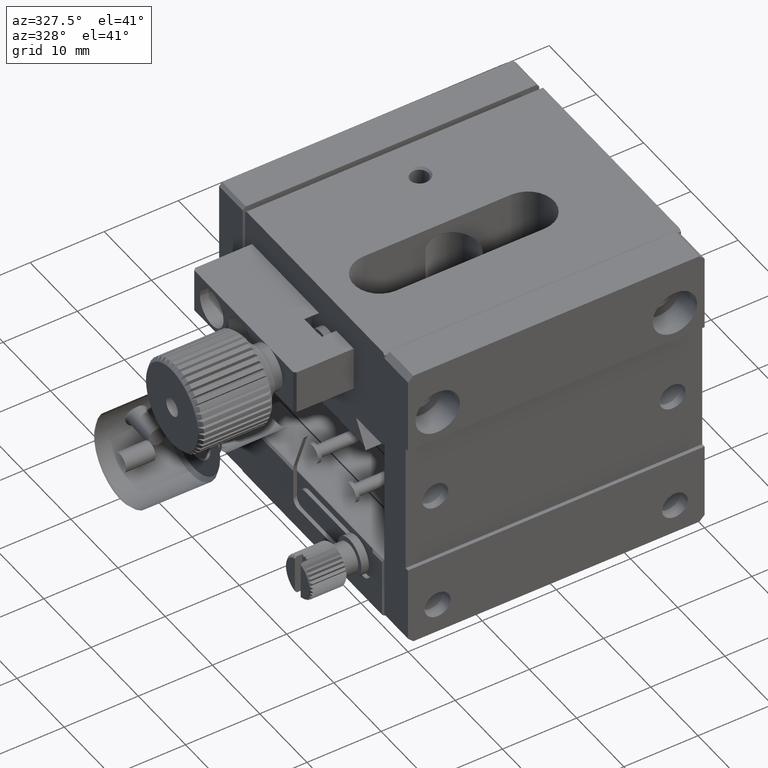
[diagram: clean part render]
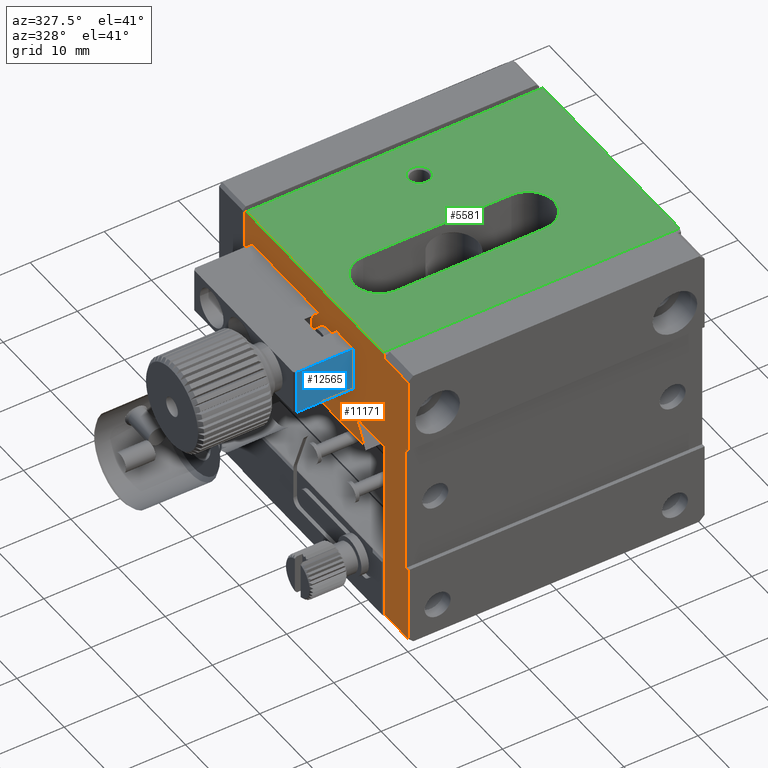
[diagram: same view with three faces highlighted in distinct colors, each labeled with its STEP entity id]
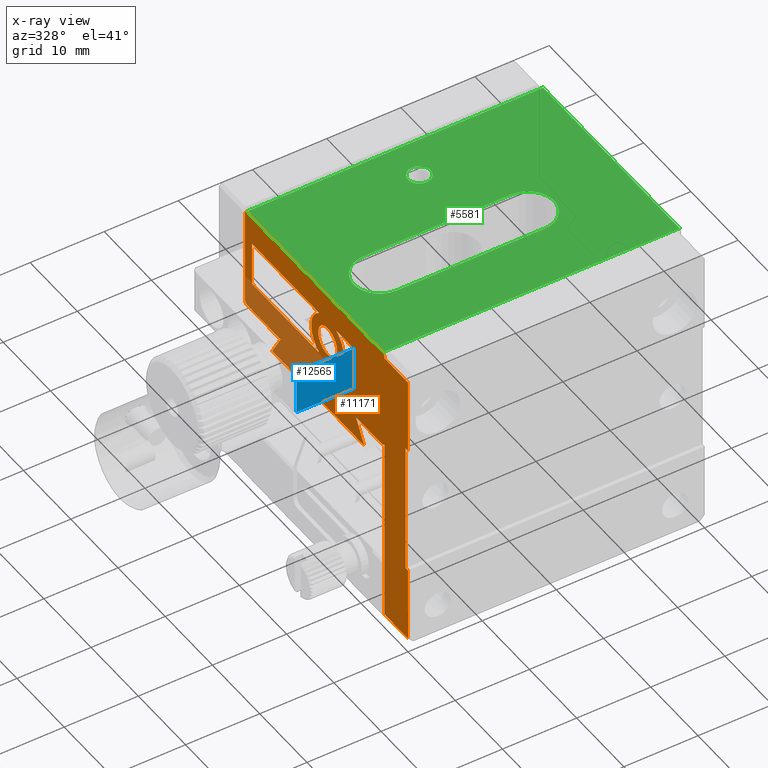
[diagram: x-ray of the same camera — body ghosted, the three highlighted faces saturated]
A machine part, auxiliary view with three faces highlighted in distinct colors.
The next image is the same camera in x-ray (body ghosted, the three faces saturated) — at least one of them is partly hidden behind the body in this view.
Their STEP definitions:

[orange] entity #11171 — the highlighted planar face has unit normal (1, 0, 0).
#56 = VERTEX_POINT ( 'NONE', #6035 ) ;
#57 = VECTOR ( 'NONE', #2877, 1000.000000000000000 ) ;
#62 = ORIENTED_EDGE ( 'NONE', *, *, #12387, .F. ) ;
#65 = DIRECTION ( 'NONE',  ( 1.000000000000000000, 0.000000000000000000, 0.000000000000000000 ) ) ;
#208 = DIRECTION ( 'NONE',  ( 0.000000000000000000, 0.000000000000000000, -1.000000000000000000 ) ) ;
#218 = VECTOR ( 'NONE', #19197, 1000.000000000000000 ) ;
#277 = CARTESIAN_POINT ( 'NONE',  ( 0.000000000000000000, 5.000000000000000000, 0.000000000000000000 ) ) ;
#422 = ORIENTED_EDGE ( 'NONE', *, *, #16693, .F. ) ;
#431 = VERTEX_POINT ( 'NONE', #11874 ) ;
#457 = ORIENTED_EDGE ( 'NONE', *, *, #10751, .T. ) ;
#499 = ORIENTED_EDGE ( 'NONE', *, *, #1529, .T. ) ;
#505 = FACE_BOUND ( 'NONE', #5368, .T. ) ;
#529 = AXIS2_PLACEMENT_3D ( 'NONE', #9708, #11272, #19022 ) ;
#539 = CARTESIAN_POINT ( 'NONE',  ( 0.000000000000000000, 0.000000000000000000, -14.00000000000000000 ) ) ;
#597 = VERTEX_POINT ( 'NONE', #9491 ) ;
#651 = CARTESIAN_POINT ( 'NONE',  ( 0.000000000000000000, 18.82200000000000273, -4.011636568286916393 ) ) ;
#736 = ORIENTED_EDGE ( 'NONE', *, *, #12266, .T. ) ;
#748 = DIRECTION ( 'NONE',  ( -0.000000000000000000, -0.000000000000000000, 1.000000000000000000 ) ) ;
#789 = CARTESIAN_POINT ( 'NONE',  ( 0.000000000000000000, 15.17699999999999960, -10.00000000000000000 ) ) ;
#791 = ORIENTED_EDGE ( 'NONE', *, *, #8363, .F. ) ;
#871 = DIRECTION ( 'NONE',  ( 0.000000000000000000, 0.000000000000000000, -1.000000000000000000 ) ) ;
#885 = DIRECTION ( 'NONE',  ( 0.000000000000000000, -0.4999889997176581447, 0.8660317547072599043 ) ) ;
#943 = VERTEX_POINT ( 'NONE', #17565 ) ;
#1044 = VECTOR ( 'NONE', #12596, 1000.000000000000000 ) ;
#1138 = CARTESIAN_POINT ( 'NONE',  ( -1.490777987167568597E-16, 5.000000000000000000, -39.28999999999999915 ) ) ;
#1241 = EDGE_CURVE ( 'NONE', #597, #3426, #3762, .T. ) ;
#1379 = ORIENTED_EDGE ( 'NONE', *, *, #3926, .T. ) ;
#1393 = VECTOR ( 'NONE', #15242, 1000.000000000000000 ) ;
#1395 = VERTEX_POINT ( 'NONE', #18146 ) ;
#1479 = VERTEX_POINT ( 'NONE', #6278 ) ;
#1529 = EDGE_CURVE ( 'NONE', #1479, #3426, #11862, .T. ) ;
#1562 = LINE ( 'NONE', #7247, #18067 ) ;
#1563 = DIRECTION ( 'NONE',  ( 0.000000000000000000, 0.000000000000000000, -1.000000000000000000 ) ) ;
#1619 = LINE ( 'NONE', #4661, #13008 ) ;
#1750 = CARTESIAN_POINT ( 'NONE',  ( 0.000000000000000000, 0.5000000000000000000, 0.000000000000000000 ) ) ;
#1795 = DIRECTION ( 'NONE',  ( 0.000000000000000000, 0.000000000000000000, -1.000000000000000000 ) ) ;
#1893 = FACE_OUTER_BOUND ( 'NONE', #6034, .T. ) ;
#1899 = EDGE_CURVE ( 'NONE', #11045, #16849, #16319, .T. ) ;
#1975 = LINE ( 'NONE', #6205, #7366 ) ;
#2061 = VECTOR ( 'NONE', #2404, 1000.000000000000114 ) ;
#2178 = FACE_BOUND ( 'NONE', #16252, .T. ) ;
#2382 = LINE ( 'NONE', #18864, #7986 ) ;
#2404 = DIRECTION ( 'NONE',  ( 0.000000000000000000, -0.7071067811864873986, -0.7071067811866076358 ) ) ;
#2416 = VECTOR ( 'NONE', #4064, 1000.000000000000000 ) ;
#2465 = DIRECTION ( 'NONE',  ( 0.000000000000000000, 1.000000000000000000, 0.000000000000000000 ) ) ;
#2494 = CARTESIAN_POINT ( 'NONE',  ( 0.000000000000000000, 0.5000000000000000000, -29.00000000000000000 ) ) ;
#2511 = VECTOR ( 'NONE', #1563, 1000.000000000000000 ) ;
#2535 = ORIENTED_EDGE ( 'NONE', *, *, #14088, .F. ) ;
#2557 = CARTESIAN_POINT ( 'NONE',  ( 0.000000000000000000, 28.73199999999999932, -17.00000000000000000 ) ) ;
#2716 = CARTESIAN_POINT ( 'NONE',  ( 0.000000000000000000, 15.17699999999999960, -10.00000000000000000 ) ) ;
#2740 = ORIENTED_EDGE ( 'NONE', *, *, #1241, .F. ) ;
#2746 = LINE ( 'NONE', #19039, #10428 ) ;
#2832 = CARTESIAN_POINT ( 'NONE',  ( -2.473336205982554525E-16, 0.000000000000000000, -0.7100000000000016298 ) ) ;
#2877 = DIRECTION ( 'NONE',  ( -0.000000000000000000, -1.000000000000000000, -0.000000000000000000 ) ) ;
#2924 = VECTOR ( 'NONE', #6268, 1000.000000000000000 ) ;
#3012 = LINE ( 'NONE', #9011, #12333 ) ;
#3043 = DIRECTION ( 'NONE',  ( -0.000000000000000000, -0.000000000000000000, 1.000000000000000000 ) ) ;
#3087 = VERTEX_POINT ( 'NONE', #14711 ) ;
#3126 = EDGE_CURVE ( 'NONE', #1395, #13192, #2746, .T. ) ;
#3150 = AXIS2_PLACEMENT_3D ( 'NONE', #5198, #3730, #12734 ) ;
#3208 = ORIENTED_EDGE ( 'NONE', *, *, #12553, .T. ) ;
#3232 = ORIENTED_EDGE ( 'NONE', *, *, #15427, .F. ) ;
#3364 = EDGE_CURVE ( 'NONE', #13409, #11045, #9208, .T. ) ;
#3426 = VERTEX_POINT ( 'NONE', #651 ) ;
#3519 = CARTESIAN_POINT ( 'NONE',  ( 0.000000000000000000, 5.000000000000000000, -13.70000000000000107 ) ) ;
#3730 = DIRECTION ( 'NONE',  ( 1.000000000000000000, 0.000000000000000000, 0.000000000000000000 ) ) ;
#3762 = CIRCLE ( 'NONE', #3150, 3.500000000000000444 ) ;
#3814 = ORIENTED_EDGE ( 'NONE', *, *, #16464, .F. ) ;
#3823 = LINE ( 'NONE', #14216, #4326 ) ;
#3909 = VECTOR ( 'NONE', #18662, 1000.000000000000000 ) ;
#3926 = EDGE_CURVE ( 'NONE', #4644, #11369, #2382, .T. ) ;
#4064 = DIRECTION ( 'NONE',  ( 0.000000000000000000, 1.000000000000000000, 0.000000000000000000 ) ) ;
#4216 = CARTESIAN_POINT ( 'NONE',  ( 0.000000000000000000, 0.000000000000000000, 0.000000000000000000 ) ) ;
#4243 = CARTESIAN_POINT ( 'NONE',  ( 0.000000000000000000, 34.20000000000000284, -14.00000000000000000 ) ) ;
#4291 = CARTESIAN_POINT ( 'NONE',  ( -5.204170427930421283E-15, 5.299999999999958966, 2.868762341281245075E-15 ) ) ;
#4319 = VECTOR ( 'NONE', #15636, 1000.000000000000000 ) ;
#4326 = VECTOR ( 'NONE', #7056, 1000.000000000000000 ) ;
#4346 = VECTOR ( 'NONE', #871, 1000.000000000000000 ) ;
#4369 = VERTEX_POINT ( 'NONE', #13127 ) ;
#4534 = DIRECTION ( 'NONE',  ( -0.000000000000000000, -1.000000000000000000, -0.000000000000000000 ) ) ;
#4536 = CARTESIAN_POINT ( 'NONE',  ( 0.000000000000000000, 33.00000000000000000, 0.000000000000000000 ) ) ;
#4583 = CARTESIAN_POINT ( 'NONE',  ( 0.000000000000000000, 33.00000000000000000, -4.000000000000000000 ) ) ;
#4603 = ORIENTED_EDGE ( 'NONE', *, *, #4747, .F. ) ;
#4644 = VERTEX_POINT ( 'NONE', #4291 ) ;
#4661 = CARTESIAN_POINT ( 'NONE',  ( 0.000000000000000000, 0.000000000000000000, -4.000000000000000000 ) ) ;
#4682 = VERTEX_POINT ( 'NONE', #15965 ) ;
#4728 = VERTEX_POINT ( 'NONE', #2716 ) ;
#4747 = EDGE_CURVE ( 'NONE', #15155, #6551, #4877, .T. ) ;
#4793 = AXIS2_PLACEMENT_3D ( 'NONE', #16450, #65, #17927 ) ;
#4877 = LINE ( 'NONE', #5963, #18633 ) ;
#4962 = EDGE_CURVE ( 'NONE', #4644, #13409, #11049, .T. ) ;
#5113 = FACE_BOUND ( 'NONE', #12937, .T. ) ;
#5198 = CARTESIAN_POINT ( 'NONE',  ( 0.000000000000000000, 17.00000000000000000, -7.000000000000000000 ) ) ;
#5282 = EDGE_CURVE ( 'NONE', #1479, #17234, #1619, .T. ) ;
#5289 = ORIENTED_EDGE ( 'NONE', *, *, #5282, .F. ) ;
#5368 = EDGE_LOOP ( 'NONE', ( #3232 ) ) ;
#5410 = CARTESIAN_POINT ( 'NONE',  ( 0.000000000000000000, 0.5000000000000000000, -11.00000000000000000 ) ) ;
#5599 = ORIENTED_EDGE ( 'NONE', *, *, #11482, .F. ) ;
#5938 = VERTEX_POINT ( 'NONE', #16159 ) ;
#5955 = CARTESIAN_POINT ( 'NONE',  ( 0.000000000000000000, 0.000000000000000000, -10.00000000000000000 ) ) ;
#5963 = CARTESIAN_POINT ( 'NONE',  ( 0.000000000000000000, 11.50000000000000000, 0.000000000000000000 ) ) ;
#6034 = EDGE_LOOP ( 'NONE', ( #19347, #17519, #17115, #14388, #1379, #17568, #2535, #18257, #10693, #62, #9961, #791, #11963, #457, #5599, #14169, #3814, #16283, #6058, #6648 ) ) ;
#6035 = CARTESIAN_POINT ( 'NONE',  ( -3.469446951953614189E-15, 27.00000000000001066, -13.99999999999999289 ) ) ;
#6058 = ORIENTED_EDGE ( 'NONE', *, *, #19213, .F. ) ;
#6076 = VECTOR ( 'NONE', #748, 1000.000000000000000 ) ;
#6078 = CARTESIAN_POINT ( 'NONE',  ( 0.000000000000000000, 34.20000000000000995, 5.063928876919421285E-15 ) ) ;
#6205 = CARTESIAN_POINT ( 'NONE',  ( 0.000000000000000000, 34.50000000000000000, -0.3000000000000099809 ) ) ;
#6268 = DIRECTION ( 'NONE',  ( 0.000000000000000000, 0.000000000000000000, -1.000000000000000000 ) ) ;
#6278 = CARTESIAN_POINT ( 'NONE',  ( 0.000000000000000000, 18.82199999999999918, -4.000000000000000000 ) ) ;
#6492 = LINE ( 'NONE', #13639, #11116 ) ;
#6551 = VERTEX_POINT ( 'NONE', #15364 ) ;
#6630 = LINE ( 'NONE', #539, #1044 ) ;
#6648 = ORIENTED_EDGE ( 'NONE', *, *, #12399, .F. ) ;
#6663 = VERTEX_POINT ( 'NONE', #8114 ) ;
#6880 = DIRECTION ( 'NONE',  ( -0.000000000000000000, -1.000000000000000000, -0.000000000000000000 ) ) ;
#7004 = LINE ( 'NONE', #16218, #2416 ) ;
#7056 = DIRECTION ( 'NONE',  ( 0.000000000000000000, 1.000000000000000000, 0.000000000000000000 ) ) ;
#7247 = CARTESIAN_POINT ( 'NONE',  ( 0.000000000000000000, 0.000000000000000000, -14.00000000000000000 ) ) ;
#7282 = VECTOR ( 'NONE', #16301, 999.9999999999998863 ) ;
#7366 = VECTOR ( 'NONE', #16886, 1000.000000000000114 ) ;
#7454 = DIRECTION ( 'NONE',  ( 0.000000000000000000, 1.000000000000000000, 0.000000000000000000 ) ) ;
#7603 = DIRECTION ( 'NONE',  ( 0.000000000000000000, 1.000000000000000000, 0.000000000000000000 ) ) ;
#7644 = EDGE_CURVE ( 'NONE', #4728, #15155, #13403, .T. ) ;
#7759 = CARTESIAN_POINT ( 'NONE',  ( 0.000000000000000000, 34.50000000000000000, 0.000000000000000000 ) ) ;
#7986 = VECTOR ( 'NONE', #12593, 1000.000000000000000 ) ;
#8027 = VERTEX_POINT ( 'NONE', #11519 ) ;
#8038 = LINE ( 'NONE', #13811, #6076 ) ;
#8052 = ORIENTED_EDGE ( 'NONE', *, *, #11121, .F. ) ;
#8081 = DIRECTION ( 'NONE',  ( 1.000000000000000000, 0.000000000000000000, 0.000000000000000000 ) ) ;
#8098 = CARTESIAN_POINT ( 'NONE',  ( -5.204170427930421283E-15, 5.000000000000004441, -0.3000000000000050404 ) ) ;
#8114 = CARTESIAN_POINT ( 'NONE',  ( 0.000000000000000000, 15.17699999999999960, -4.000000000000000000 ) ) ;
#8363 = EDGE_CURVE ( 'NONE', #15221, #8027, #9645, .T. ) ;
#8459 = LINE ( 'NONE', #789, #3909 ) ;
#8499 = VERTEX_POINT ( 'NONE', #10217 ) ;
#8991 = EDGE_CURVE ( 'NONE', #16849, #9131, #14703, .T. ) ;
#9011 = CARTESIAN_POINT ( 'NONE',  ( 0.000000000000000000, 5.000000000000000000, -13.70000000000000107 ) ) ;
#9131 = VERTEX_POINT ( 'NONE', #10488 ) ;
#9208 = LINE ( 'NONE', #277, #2924 ) ;
#9212 = AXIS2_PLACEMENT_3D ( 'NONE', #17077, #8081, #1795 ) ;
#9491 = CARTESIAN_POINT ( 'NONE',  ( 0.000000000000000000, 18.82199999999999918, -9.988363431713086271 ) ) ;
#9645 = LINE ( 'NONE', #12583, #4319 ) ;
#9708 = CARTESIAN_POINT ( 'NONE',  ( 0.000000000000000000, 17.00000000000000000, -7.000000000000000000 ) ) ;
#9820 = VECTOR ( 'NONE', #16600, 1000.000000000000000 ) ;
#9938 = EDGE_CURVE ( 'NONE', #16748, #5938, #10321, .T. ) ;
#9961 = ORIENTED_EDGE ( 'NONE', *, *, #15833, .F. ) ;
#10141 = VERTEX_POINT ( 'NONE', #1138 ) ;
#10217 = CARTESIAN_POINT ( 'NONE',  ( 0.000000000000000000, 15.17700000000000315, -4.012246496111165683 ) ) ;
#10321 = LINE ( 'NONE', #4243, #7282 ) ;
#10428 = VECTOR ( 'NONE', #6880, 1000.000000000000000 ) ;
#10488 = CARTESIAN_POINT ( 'NONE',  ( 0.000000000000000000, 0.000000000000000000, -11.00000000000000000 ) ) ;
#10649 = EDGE_CURVE ( 'NONE', #8499, #431, #11989, .T. ) ;
#10693 = ORIENTED_EDGE ( 'NONE', *, *, #15647, .F. ) ;
#10751 = EDGE_CURVE ( 'NONE', #4682, #15799, #3012, .T. ) ;
#10842 = VERTEX_POINT ( 'NONE', #12675 ) ;
#11045 = VERTEX_POINT ( 'NONE', #14827 ) ;
#11049 = LINE ( 'NONE', #18695, #2061 ) ;
#11096 = PLANE ( 'NONE',  #9212 ) ;
#11116 = VECTOR ( 'NONE', #208, 1000.000000000000000 ) ;
#11121 = EDGE_CURVE ( 'NONE', #17234, #1395, #17978, .T. ) ;
#11171 = ADVANCED_FACE ( 'NONE', ( #1893, #5113, #2178, #505 ), #11096, .F. ) ;
#11216 = CIRCLE ( 'NONE', #529, 2.000000000000000000 ) ;
#11272 = DIRECTION ( 'NONE',  ( -1.000000000000000000, 0.000000000000000000, 0.000000000000000000 ) ) ;
#11332 = ORIENTED_EDGE ( 'NONE', *, *, #3126, .F. ) ;
#11369 = VERTEX_POINT ( 'NONE', #6078 ) ;
#11482 = EDGE_CURVE ( 'NONE', #10141, #15799, #8038, .T. ) ;
#11494 = EDGE_CURVE ( 'NONE', #10842, #10141, #12347, .T. ) ;
#11519 = CARTESIAN_POINT ( 'NONE',  ( 0.000000000000000000, 9.267999999999970484, -17.00000000000000000 ) ) ;
#11793 = LINE ( 'NONE', #14726, #14592 ) ;
#11823 = EDGE_CURVE ( 'NONE', #4682, #15221, #6630, .T. ) ;
#11862 = LINE ( 'NONE', #17845, #2511 ) ;
#11874 = CARTESIAN_POINT ( 'NONE',  ( 0.000000000000000000, 15.17700000000000315, -9.987753503888836093 ) ) ;
#11963 = ORIENTED_EDGE ( 'NONE', *, *, #11823, .F. ) ;
#11989 = CIRCLE ( 'NONE', #4793, 3.500000000000000444 ) ;
#12067 = ORIENTED_EDGE ( 'NONE', *, *, #10649, .F. ) ;
#12097 = EDGE_CURVE ( 'NONE', #8499, #6663, #18482, .T. ) ;
#12148 = VECTOR ( 'NONE', #16494, 1000.000000000000000 ) ;
#12203 = CARTESIAN_POINT ( 'NONE',  ( 0.000000000000000000, 15.17699999999999960, -10.00000000000000000 ) ) ;
#12266 = EDGE_CURVE ( 'NONE', #4728, #431, #8459, .T. ) ;
#12333 = VECTOR ( 'NONE', #13600, 1000.000000000000000 ) ;
#12347 = LINE ( 'NONE', #18341, #18600 ) ;
#12387 = EDGE_CURVE ( 'NONE', #943, #56, #14333, .T. ) ;
#12399 = EDGE_CURVE ( 'NONE', #9131, #4369, #18849, .T. ) ;
#12553 = EDGE_CURVE ( 'NONE', #597, #13192, #6492, .T. ) ;
#12583 = CARTESIAN_POINT ( 'NONE',  ( 0.000000000000000000, 11.00000000000000000, -14.00000000000000000 ) ) ;
#12593 = DIRECTION ( 'NONE',  ( 0.000000000000000000, 1.000000000000000000, 6.083000475477650450E-17 ) ) ;
#12596 = DIRECTION ( 'NONE',  ( 0.000000000000000000, 1.000000000000000000, 0.000000000000000000 ) ) ;
#12632 = EDGE_CURVE ( 'NONE', #19240, #11369, #1975, .T. ) ;
#12675 = CARTESIAN_POINT ( 'NONE',  ( -1.355252715606880543E-16, 0.000000000000000000, -39.28999999999999915 ) ) ;
#12734 = DIRECTION ( 'NONE',  ( 0.000000000000000000, 0.000000000000000000, -1.000000000000000000 ) ) ;
#12937 = EDGE_LOOP ( 'NONE', ( #2740, #3208, #11332, #8052, #5289, #499 ) ) ;
#13008 = VECTOR ( 'NONE', #7603, 1000.000000000000000 ) ;
#13127 = CARTESIAN_POINT ( 'NONE',  ( 0.000000000000000000, 0.5000000000000000000, -11.00000000000000000 ) ) ;
#13192 = VERTEX_POINT ( 'NONE', #14361 ) ;
#13403 = LINE ( 'NONE', #5955, #218 ) ;
#13409 = VERTEX_POINT ( 'NONE', #8098 ) ;
#13455 = CARTESIAN_POINT ( 'NONE',  ( 0.000000000000000000, 0.000000000000000000, 0.000000000000000000 ) ) ;
#13533 = LINE ( 'NONE', #7759, #15561 ) ;
#13600 = DIRECTION ( 'NONE',  ( 0.000000000000000000, -0.7071067811864800712, 0.7071067811866150743 ) ) ;
#13639 = CARTESIAN_POINT ( 'NONE',  ( 0.000000000000000000, 18.82199999999999918, -10.00000000000000000 ) ) ;
#13721 = EDGE_CURVE ( 'NONE', #17619, #3087, #11793, .T. ) ;
#13811 = CARTESIAN_POINT ( 'NONE',  ( 0.000000000000000000, 5.000000000000000000, 0.000000000000000000 ) ) ;
#13999 = DIRECTION ( 'NONE',  ( 0.000000000000000000, 1.000000000000000000, 0.000000000000000000 ) ) ;
#14088 = EDGE_CURVE ( 'NONE', #16748, #19240, #13533, .T. ) ;
#14169 = ORIENTED_EDGE ( 'NONE', *, *, #11494, .F. ) ;
#14216 = CARTESIAN_POINT ( 'NONE',  ( 0.000000000000000000, 0.000000000000000000, -4.000000000000000000 ) ) ;
#14333 = LINE ( 'NONE', #2557, #16458 ) ;
#14361 = CARTESIAN_POINT ( 'NONE',  ( 0.000000000000000000, 18.82199999999999918, -10.00000000000000000 ) ) ;
#14388 = ORIENTED_EDGE ( 'NONE', *, *, #4962, .F. ) ;
#14592 = VECTOR ( 'NONE', #4534, 1000.000000000000000 ) ;
#14639 = VERTEX_POINT ( 'NONE', #19068 ) ;
#14703 = LINE ( 'NONE', #4216, #4346 ) ;
#14711 = CARTESIAN_POINT ( 'NONE',  ( 0.000000000000000000, 0.000000000000000000, -29.00000000000000000 ) ) ;
#14726 = CARTESIAN_POINT ( 'NONE',  ( 0.000000000000000000, 0.5000000000000000000, -29.00000000000000000 ) ) ;
#14827 = CARTESIAN_POINT ( 'NONE',  ( -1.304430738771621290E-16, 5.000000000000000000, -0.7100000000000018519 ) ) ;
#15030 = LINE ( 'NONE', #13455, #12148 ) ;
#15155 = VERTEX_POINT ( 'NONE', #15906 ) ;
#15221 = VERTEX_POINT ( 'NONE', #16287 ) ;
#15242 = DIRECTION ( 'NONE',  ( -0.000000000000000000, -0.000000000000000000, 1.000000000000000000 ) ) ;
#15364 = CARTESIAN_POINT ( 'NONE',  ( 0.000000000000000000, 11.50000000000000000, -4.000000000000000000 ) ) ;
#15427 = EDGE_CURVE ( 'NONE', #14639, #14639, #11216, .T. ) ;
#15561 = VECTOR ( 'NONE', #3043, 1000.000000000000000 ) ;
#15574 = DIRECTION ( 'NONE',  ( 0.000000000000000000, 0.000000000000000000, -1.000000000000000000 ) ) ;
#15612 = ORIENTED_EDGE ( 'NONE', *, *, #12097, .T. ) ;
#15636 = DIRECTION ( 'NONE',  ( 0.000000000000000000, -0.4999889997176641954, -0.8660317547072564626 ) ) ;
#15647 = EDGE_CURVE ( 'NONE', #56, #5938, #1562, .T. ) ;
#15690 = VECTOR ( 'NONE', #15574, 1000.000000000000000 ) ;
#15799 = VERTEX_POINT ( 'NONE', #3519 ) ;
#15833 = EDGE_CURVE ( 'NONE', #8027, #943, #7004, .T. ) ;
#15906 = CARTESIAN_POINT ( 'NONE',  ( 0.000000000000000000, 11.50000000000000000, -10.00000000000000000 ) ) ;
#15965 = CARTESIAN_POINT ( 'NONE',  ( 0.000000000000000000, 5.299999999999955413, -14.00000000000000533 ) ) ;
#16159 = CARTESIAN_POINT ( 'NONE',  ( 0.000000000000000000, 34.19999999999999574, -14.00000000000000178 ) ) ;
#16218 = CARTESIAN_POINT ( 'NONE',  ( 0.000000000000000000, 0.000000000000000000, -17.00000000000000000 ) ) ;
#16252 = EDGE_LOOP ( 'NONE', ( #12067, #15612, #422, #4603, #16962, #736 ) ) ;
#16283 = ORIENTED_EDGE ( 'NONE', *, *, #13721, .F. ) ;
#16287 = CARTESIAN_POINT ( 'NONE',  ( 0.000000000000000000, 11.00000000000000000, -14.00000000000000000 ) ) ;
#16301 = DIRECTION ( 'NONE',  ( 0.000000000000000000, -0.7071067811865191510, -0.7071067811865761055 ) ) ;
#16319 = LINE ( 'NONE', #17996, #57 ) ;
#16450 = CARTESIAN_POINT ( 'NONE',  ( 0.000000000000000000, 17.00000000000000000, -7.000000000000000000 ) ) ;
#16458 = VECTOR ( 'NONE', #885, 1000.000000000000000 ) ;
#16464 = EDGE_CURVE ( 'NONE', #3087, #10842, #15030, .T. ) ;
#16494 = DIRECTION ( 'NONE',  ( 0.000000000000000000, 0.000000000000000000, -1.000000000000000000 ) ) ;
#16600 = DIRECTION ( 'NONE',  ( 0.000000000000000000, 0.000000000000000000, -1.000000000000000000 ) ) ;
#16646 = DIRECTION ( 'NONE',  ( -0.000000000000000000, -0.000000000000000000, 1.000000000000000000 ) ) ;
#16656 = LINE ( 'NONE', #1750, #15690 ) ;
#16693 = EDGE_CURVE ( 'NONE', #6551, #6663, #3823, .T. ) ;
#16748 = VERTEX_POINT ( 'NONE', #17545 ) ;
#16771 = VECTOR ( 'NONE', #2465, 1000.000000000000000 ) ;
#16849 = VERTEX_POINT ( 'NONE', #2832 ) ;
#16886 = DIRECTION ( 'NONE',  ( 0.000000000000000000, -0.7071067811865355823, 0.7071067811865594521 ) ) ;
#16962 = ORIENTED_EDGE ( 'NONE', *, *, #7644, .F. ) ;
#17042 = CARTESIAN_POINT ( 'NONE',  ( 0.000000000000000000, 34.50000000000000000, -0.3000000000000102029 ) ) ;
#17077 = CARTESIAN_POINT ( 'NONE',  ( 0.000000000000000000, 0.000000000000000000, 0.000000000000000000 ) ) ;
#17115 = ORIENTED_EDGE ( 'NONE', *, *, #3364, .F. ) ;
#17234 = VERTEX_POINT ( 'NONE', #4583 ) ;
#17519 = ORIENTED_EDGE ( 'NONE', *, *, #1899, .F. ) ;
#17545 = CARTESIAN_POINT ( 'NONE',  ( 0.000000000000000000, 34.49999999999999289, -13.69999999999999396 ) ) ;
#17565 = CARTESIAN_POINT ( 'NONE',  ( -1.734723475976807094E-15, 28.73199999999999932, -17.00000000000000000 ) ) ;
#17568 = ORIENTED_EDGE ( 'NONE', *, *, #12632, .F. ) ;
#17619 = VERTEX_POINT ( 'NONE', #2494 ) ;
#17845 = CARTESIAN_POINT ( 'NONE',  ( 0.000000000000000000, 18.82199999999999918, -10.00000000000000000 ) ) ;
#17927 = DIRECTION ( 'NONE',  ( 0.000000000000000000, 0.000000000000000000, -1.000000000000000000 ) ) ;
#17978 = LINE ( 'NONE', #4536, #9820 ) ;
#17996 = CARTESIAN_POINT ( 'NONE',  ( 0.000000000000000000, 0.000000000000000000, -0.7100000000000019629 ) ) ;
#18067 = VECTOR ( 'NONE', #7454, 1000.000000000000000 ) ;
#18146 = CARTESIAN_POINT ( 'NONE',  ( 0.000000000000000000, 33.00000000000000000, -10.00000000000000000 ) ) ;
#18257 = ORIENTED_EDGE ( 'NONE', *, *, #9938, .T. ) ;
#18341 = CARTESIAN_POINT ( 'NONE',  ( 0.000000000000000000, 0.000000000000000000, -39.28999999999999915 ) ) ;
#18482 = LINE ( 'NONE', #12203, #1393 ) ;
#18600 = VECTOR ( 'NONE', #13999, 1000.000000000000000 ) ;
#18633 = VECTOR ( 'NONE', #16646, 1000.000000000000000 ) ;
#18662 = DIRECTION ( 'NONE',  ( -0.000000000000000000, -0.000000000000000000, 1.000000000000000000 ) ) ;
#18695 = CARTESIAN_POINT ( 'NONE',  ( 0.000000000000000000, 5.299999999999959854, 1.836970198720740089E-17 ) ) ;
#18849 = LINE ( 'NONE', #5410, #16771 ) ;
#18864 = CARTESIAN_POINT ( 'NONE',  ( 0.000000000000000000, 34.20000000000000284, 1.776356839400250070E-15 ) ) ;
#19022 = DIRECTION ( 'NONE',  ( 0.000000000000000000, 0.000000000000000000, 1.000000000000000000 ) ) ;
#19039 = CARTESIAN_POINT ( 'NONE',  ( 0.000000000000000000, 0.000000000000000000, -10.00000000000000000 ) ) ;
#19068 = CARTESIAN_POINT ( 'NONE',  ( 0.000000000000000000, 17.00000000000000000, -5.000000000000000000 ) ) ;
#19197 = DIRECTION ( 'NONE',  ( -0.000000000000000000, -1.000000000000000000, -0.000000000000000000 ) ) ;
#19213 = EDGE_CURVE ( 'NONE', #4369, #17619, #16656, .T. ) ;
#19240 = VERTEX_POINT ( 'NONE', #17042 ) ;
#19347 = ORIENTED_EDGE ( 'NONE', *, *, #8991, .F. ) ;

[blue] entity #12565 — the highlighted planar face has unit normal (-0, 1, 0).
#655 = DIRECTION ( 'NONE',  ( -0.000000000000000000, -0.000000000000000000, 1.000000000000000000 ) ) ;
#1032 = EDGE_LOOP ( 'NONE', ( #1035, #14800, #2325, #4582 ) ) ;
#1035 = ORIENTED_EDGE ( 'NONE', *, *, #19344, .F. ) ;
#1488 = VERTEX_POINT ( 'NONE', #14902 ) ;
#2325 = ORIENTED_EDGE ( 'NONE', *, *, #4747, .T. ) ;
#2508 = CARTESIAN_POINT ( 'NONE',  ( -7.699999999999990408, 11.50000000000000000, -10.00000000000000000 ) ) ;
#3253 = FACE_OUTER_BOUND ( 'NONE', #1032, .T. ) ;
#4582 = ORIENTED_EDGE ( 'NONE', *, *, #10552, .T. ) ;
#4747 = EDGE_CURVE ( 'NONE', #15155, #6551, #4877, .T. ) ;
#4877 = LINE ( 'NONE', #5963, #18633 ) ;
#5045 = VECTOR ( 'NONE', #655, 1000.000000000000000 ) ;
#5934 = VERTEX_POINT ( 'NONE', #17836 ) ;
#5963 = CARTESIAN_POINT ( 'NONE',  ( 0.000000000000000000, 11.50000000000000000, 0.000000000000000000 ) ) ;
#6132 = EDGE_CURVE ( 'NONE', #15155, #5934, #13991, .T. ) ;
#6300 = PLANE ( 'NONE',  #14244 ) ;
#6551 = VERTEX_POINT ( 'NONE', #15364 ) ;
#6782 = VECTOR ( 'NONE', #9585, 1000.000000000000000 ) ;
#8235 = DIRECTION ( 'NONE',  ( -1.000000000000000000, 0.000000000000000000, 0.000000000000000000 ) ) ;
#9431 = DIRECTION ( 'NONE',  ( 1.000000000000000000, 0.000000000000000000, 0.000000000000000000 ) ) ;
#9585 = DIRECTION ( 'NONE',  ( -1.000000000000000000, 0.000000000000000000, 0.000000000000000000 ) ) ;
#10552 = EDGE_CURVE ( 'NONE', #6551, #1488, #12633, .T. ) ;
#10707 = DIRECTION ( 'NONE',  ( -0.000000000000000000, 1.000000000000000000, 0.000000000000000000 ) ) ;
#12565 = ADVANCED_FACE ( 'NONE', ( #3253 ), #6300, .F. ) ;
#12633 = LINE ( 'NONE', #15867, #16055 ) ;
#13991 = LINE ( 'NONE', #15661, #6782 ) ;
#14244 = AXIS2_PLACEMENT_3D ( 'NONE', #16686, #10707, #9431 ) ;
#14800 = ORIENTED_EDGE ( 'NONE', *, *, #6132, .F. ) ;
#14902 = CARTESIAN_POINT ( 'NONE',  ( -7.699999999999990408, 11.50000000000000000, -4.000000000000000000 ) ) ;
#15155 = VERTEX_POINT ( 'NONE', #15906 ) ;
#15364 = CARTESIAN_POINT ( 'NONE',  ( 0.000000000000000000, 11.50000000000000000, -4.000000000000000000 ) ) ;
#15661 = CARTESIAN_POINT ( 'NONE',  ( 0.000000000000000000, 11.50000000000000000, -10.00000000000000000 ) ) ;
#15666 = LINE ( 'NONE', #2508, #5045 ) ;
#15867 = CARTESIAN_POINT ( 'NONE',  ( 0.000000000000000000, 11.50000000000000000, -4.000000000000000000 ) ) ;
#15906 = CARTESIAN_POINT ( 'NONE',  ( 0.000000000000000000, 11.50000000000000000, -10.00000000000000000 ) ) ;
#16055 = VECTOR ( 'NONE', #8235, 1000.000000000000000 ) ;
#16646 = DIRECTION ( 'NONE',  ( -0.000000000000000000, -0.000000000000000000, 1.000000000000000000 ) ) ;
#16686 = CARTESIAN_POINT ( 'NONE',  ( 0.000000000000000000, 11.50000000000000000, -10.00000000000000000 ) ) ;
#17836 = CARTESIAN_POINT ( 'NONE',  ( -7.699999999999990408, 11.50000000000000000, -10.00000000000000000 ) ) ;
#18633 = VECTOR ( 'NONE', #16646, 1000.000000000000000 ) ;
#19344 = EDGE_CURVE ( 'NONE', #5934, #1488, #15666, .T. ) ;

[green] entity #5581 — the highlighted planar face has unit normal (0, 0, -1).
#547 = EDGE_CURVE ( 'NONE', #8023, #4615, #13807, .T. ) ;
#701 = CARTESIAN_POINT ( 'NONE',  ( 27.00000000000000000, 20.50000000000000000, 2.357464435649529869E-16 ) ) ;
#1165 = FACE_BOUND ( 'NONE', #17008, .T. ) ;
#1359 = DIRECTION ( 'NONE',  ( -1.000000000000000000, -0.000000000000000000, -0.000000000000000000 ) ) ;
#1473 = FACE_BOUND ( 'NONE', #16503, .T. ) ;
#1883 = CARTESIAN_POINT ( 'NONE',  ( 20.00000000000000000, 29.00000000000000000, -5.684341886080801487E-11 ) ) ;
#2088 = AXIS2_PLACEMENT_3D ( 'NONE', #7168, #5790, #11774 ) ;
#2341 = ORIENTED_EDGE ( 'NONE', *, *, #547, .F. ) ;
#2382 = LINE ( 'NONE', #18864, #7986 ) ;
#2521 = CARTESIAN_POINT ( 'NONE',  ( 6.999999999999999112, 13.49999999999999822, 0.000000000000000000 ) ) ;
#3195 = EDGE_LOOP ( 'NONE', ( #14018, #6183, #5841, #6599 ) ) ;
#3451 = DIRECTION ( 'NONE',  ( 1.000000000000000000, 0.000000000000000000, 0.000000000000000000 ) ) ;
#3666 = ORIENTED_EDGE ( 'NONE', *, *, #12298, .F. ) ;
#3926 = EDGE_CURVE ( 'NONE', #4644, #11369, #2382, .T. ) ;
#4291 = CARTESIAN_POINT ( 'NONE',  ( -5.204170427930421283E-15, 5.299999999999958966, 2.868762341281245075E-15 ) ) ;
#4330 = EDGE_CURVE ( 'NONE', #16147, #8023, #16275, .T. ) ;
#4615 = VERTEX_POINT ( 'NONE', #2521 ) ;
#4644 = VERTEX_POINT ( 'NONE', #4291 ) ;
#5276 = EDGE_CURVE ( 'NONE', #11369, #10981, #5937, .T. ) ;
#5581 = ADVANCED_FACE ( 'NONE', ( #7260, #1473, #1165 ), #5996, .F. ) ;
#5790 = DIRECTION ( 'NONE',  ( 0.000000000000000000, 6.083000475477650450E-17, -1.000000000000000000 ) ) ;
#5841 = ORIENTED_EDGE ( 'NONE', *, *, #5276, .F. ) ;
#5891 = CARTESIAN_POINT ( 'NONE',  ( 40.00000000000000000, 20.50000000000000000, 9.429857742598119475E-16 ) ) ;
#5937 = LINE ( 'NONE', #10641, #11129 ) ;
#5996 = PLANE ( 'NONE',  #2088 ) ;
#6078 = CARTESIAN_POINT ( 'NONE',  ( 0.000000000000000000, 34.20000000000000995, 5.063928876919421285E-15 ) ) ;
#6183 = ORIENTED_EDGE ( 'NONE', *, *, #15072, .F. ) ;
#6247 = EDGE_CURVE ( 'NONE', #10920, #4644, #12702, .T. ) ;
#6358 = DIRECTION ( 'NONE',  ( 1.000000000000000000, 0.000000000000000000, 0.000000000000000000 ) ) ;
#6599 = ORIENTED_EDGE ( 'NONE', *, *, #3926, .F. ) ;
#6857 = EDGE_CURVE ( 'NONE', #8074, #16147, #10251, .T. ) ;
#7168 = CARTESIAN_POINT ( 'NONE',  ( 40.00000000000000000, 34.20000000000000284, 1.776356839400250070E-15 ) ) ;
#7260 = FACE_OUTER_BOUND ( 'NONE', #3195, .T. ) ;
#7523 = EDGE_CURVE ( 'NONE', #16631, #16631, #18999, .T. ) ;
#7986 = VECTOR ( 'NONE', #12593, 1000.000000000000000 ) ;
#8023 = VERTEX_POINT ( 'NONE', #11711 ) ;
#8074 = VERTEX_POINT ( 'NONE', #11909 ) ;
#8140 = CARTESIAN_POINT ( 'NONE',  ( 40.00000000000000000, 5.299999999999960743, 1.836970198720663668E-17 ) ) ;
#8273 = LINE ( 'NONE', #14426, #10472 ) ;
#8457 = DIRECTION ( 'NONE',  ( -0.000000000000000000, -1.000000000000000000, -6.083000475477650450E-17 ) ) ;
#8682 = DIRECTION ( 'NONE',  ( 0.000000000000000000, 0.000000000000000000, 1.000000000000000000 ) ) ;
#8939 = ORIENTED_EDGE ( 'NONE', *, *, #7523, .F. ) ;
#9711 = DIRECTION ( 'NONE',  ( 0.000000000000000000, 0.000000000000000000, 1.000000000000000000 ) ) ;
#9764 = ORIENTED_EDGE ( 'NONE', *, *, #6857, .F. ) ;
#9859 = VECTOR ( 'NONE', #1359, 1000.000000000000000 ) ;
#9995 = ORIENTED_EDGE ( 'NONE', *, *, #4330, .F. ) ;
#10113 = CARTESIAN_POINT ( 'NONE',  ( 40.00000000000000000, 5.299999999999960743, 2.344575718713736567E-15 ) ) ;
#10130 = CARTESIAN_POINT ( 'NONE',  ( 27.00000000000000000, 17.00000000000000000, 0.000000000000000000 ) ) ;
#10251 = CIRCLE ( 'NONE', #18380, 3.499999999999999556 ) ;
#10472 = VECTOR ( 'NONE', #11297, 1000.000000000000000 ) ;
#10641 = CARTESIAN_POINT ( 'NONE',  ( 40.00000000000000000, 34.20000000000000284, 1.776356839400250070E-15 ) ) ;
#10920 = VERTEX_POINT ( 'NONE', #10113 ) ;
#10981 = VERTEX_POINT ( 'NONE', #11691 ) ;
#11129 = VECTOR ( 'NONE', #17905, 1000.000000000000000 ) ;
#11162 = VECTOR ( 'NONE', #11250, 1000.000000000000000 ) ;
#11250 = DIRECTION ( 'NONE',  ( -1.000000000000000000, -0.000000000000000000, -0.000000000000000000 ) ) ;
#11296 = CARTESIAN_POINT ( 'NONE',  ( 40.00000000000000000, 34.20000000000000284, 1.776356839400250070E-15 ) ) ;
#11297 = DIRECTION ( 'NONE',  ( 1.000000000000000000, 0.000000000000000000, 0.000000000000000000 ) ) ;
#11369 = VERTEX_POINT ( 'NONE', #6078 ) ;
#11691 = CARTESIAN_POINT ( 'NONE',  ( 40.00000000000000000, 34.20000000000000995, 5.063928876919421285E-15 ) ) ;
#11711 = CARTESIAN_POINT ( 'NONE',  ( 6.999999999999999112, 20.50000000000000000, 2.357464435649529869E-16 ) ) ;
#11774 = DIRECTION ( 'NONE',  ( 0.000000000000000000, 1.000000000000000000, 6.083000475477650450E-17 ) ) ;
#11909 = CARTESIAN_POINT ( 'NONE',  ( 27.00000000000000000, 13.50000000000000000, 0.000000000000000000 ) ) ;
#12298 = EDGE_CURVE ( 'NONE', #4615, #8074, #8273, .T. ) ;
#12318 = CARTESIAN_POINT ( 'NONE',  ( 21.50000000000318323, 29.00000000000000000, -5.684341886080801487E-11 ) ) ;
#12339 = DIRECTION ( 'NONE',  ( 0.000000000000000000, 0.000000000000000000, 1.000000000000000000 ) ) ;
#12593 = DIRECTION ( 'NONE',  ( 0.000000000000000000, 1.000000000000000000, 6.083000475477650450E-17 ) ) ;
#12702 = LINE ( 'NONE', #8140, #11162 ) ;
#13807 = CIRCLE ( 'NONE', #17245, 3.500000000000000444 ) ;
#14018 = ORIENTED_EDGE ( 'NONE', *, *, #6247, .F. ) ;
#14424 = LINE ( 'NONE', #11296, #15903 ) ;
#14426 = CARTESIAN_POINT ( 'NONE',  ( 40.00000000000000000, 13.49999999999999822, 5.171757409763762311E-16 ) ) ;
#14644 = DIRECTION ( 'NONE',  ( 1.000000000000000000, 0.000000000000000000, 0.000000000000000000 ) ) ;
#15072 = EDGE_CURVE ( 'NONE', #10981, #10920, #14424, .T. ) ;
#15566 = AXIS2_PLACEMENT_3D ( 'NONE', #1883, #9711, #3451 ) ;
#15903 = VECTOR ( 'NONE', #8457, 1000.000000000000000 ) ;
#16147 = VERTEX_POINT ( 'NONE', #701 ) ;
#16275 = LINE ( 'NONE', #5891, #9859 ) ;
#16503 = EDGE_LOOP ( 'NONE', ( #9764, #3666, #2341, #9995 ) ) ;
#16631 = VERTEX_POINT ( 'NONE', #12318 ) ;
#17008 = EDGE_LOOP ( 'NONE', ( #8939 ) ) ;
#17245 = AXIS2_PLACEMENT_3D ( 'NONE', #18332, #12339, #6358 ) ;
#17905 = DIRECTION ( 'NONE',  ( 1.000000000000000000, 0.000000000000000000, 0.000000000000000000 ) ) ;
#18332 = CARTESIAN_POINT ( 'NONE',  ( 7.000000000000000000, 17.00000000000000000, 0.000000000000000000 ) ) ;
#18380 = AXIS2_PLACEMENT_3D ( 'NONE', #10130, #8682, #14644 ) ;
#18864 = CARTESIAN_POINT ( 'NONE',  ( 0.000000000000000000, 34.20000000000000284, 1.776356839400250070E-15 ) ) ;
#18999 = CIRCLE ( 'NONE', #15566, 1.500000000003182787 ) ;